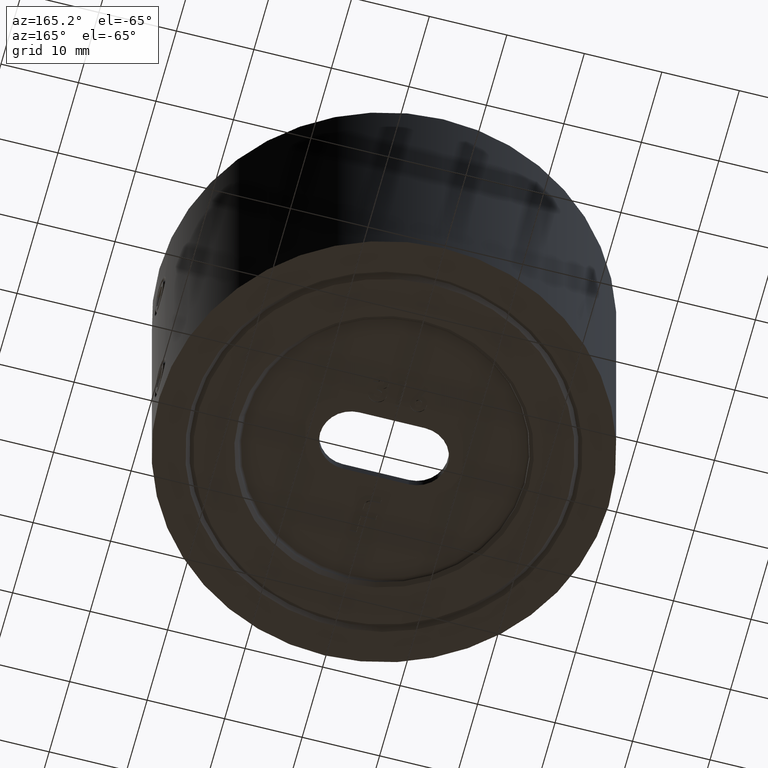
[diagram: clean part render]
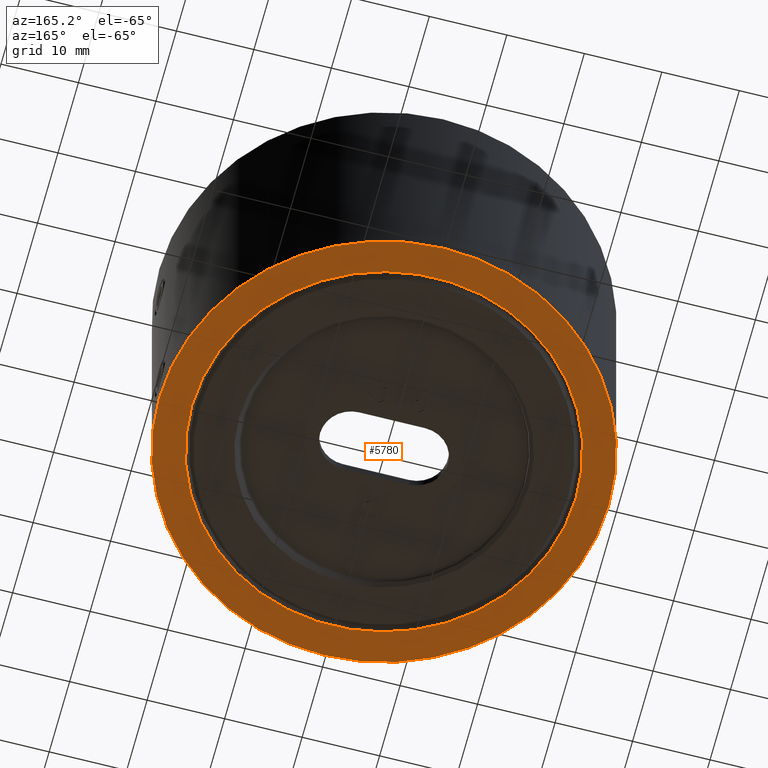
[diagram: same view with one face highlighted and labeled with its STEP entity id]
A machine part, auxiliary view. The second image highlights one B-rep face of the part: STEP entity #5780.
In plain terms, the highlighted planar face has unit normal (0, 0, 1).
Its self-contained STEP definition (entity closure, byte-faithful):
#528 = CARTESIAN_POINT ( 'NONE',  ( 24.79999999999997900, 3.037124061885433200E-015, -20.00000000000000000 ) ) ;
#592 = CARTESIAN_POINT ( 'NONE',  ( 0.0000000000000000000, 0.0000000000000000000, -20.00000000000000000 ) ) ;
#1272 = DIRECTION ( 'NONE',  ( 0.0000000000000000000, 0.0000000000000000000, 1.000000000000000000 ) ) ;
#1624 = CARTESIAN_POINT ( 'NONE',  ( -24.79999999999997900, 0.0000000000000000000, -20.00000000000000000 ) ) ;
#4226 = ORIENTED_EDGE ( 'NONE', *, *, #25349, .F. ) ;
#4228 = DIRECTION ( 'NONE',  ( 0.0000000000000000000, 0.0000000000000000000, 1.000000000000000000 ) ) ;
#5354 = EDGE_CURVE ( 'NONE', #8104, #5941, #9130, .T. ) ;
#5780 = ADVANCED_FACE ( 'NONE', ( #18858, #28303 ), #14486, .F. ) ;
#5941 = VERTEX_POINT ( 'NONE', #10800 ) ;
#5944 = DIRECTION ( 'NONE',  ( 1.000000000000000000, 0.0000000000000000000, 0.0000000000000000000 ) ) ;
#6130 = CIRCLE ( 'NONE', #7948, 29.00000000000000000 ) ;
#6208 = ORIENTED_EDGE ( 'NONE', *, *, #20875, .T. ) ;
#7948 = AXIS2_PLACEMENT_3D ( 'NONE', #27823, #12364, #5944 ) ;
#8104 = VERTEX_POINT ( 'NONE', #10433 ) ;
#9130 = CIRCLE ( 'NONE', #13333, 29.00000000000000000 ) ;
#9855 = DIRECTION ( 'NONE',  ( 1.000000000000000000, 0.0000000000000000000, 0.0000000000000000000 ) ) ;
#9988 = DIRECTION ( 'NONE',  ( 0.0000000000000000000, 0.0000000000000000000, 1.000000000000000000 ) ) ;
#10359 = EDGE_LOOP ( 'NONE', ( #4226, #26265 ) ) ;
#10433 = CARTESIAN_POINT ( 'NONE',  ( 29.00000000000000000, 3.551475717527324000E-015, -20.00000000000000000 ) ) ;
#10442 = VERTEX_POINT ( 'NONE', #1624 ) ;
#10800 = CARTESIAN_POINT ( 'NONE',  ( -29.00000000000000000, 0.0000000000000000000, -20.00000000000000000 ) ) ;
#12364 = DIRECTION ( 'NONE',  ( 0.0000000000000000000, 0.0000000000000000000, 1.000000000000000000 ) ) ;
#13333 = AXIS2_PLACEMENT_3D ( 'NONE', #26481, #4228, #15109 ) ;
#14486 = PLANE ( 'NONE',  #24324 ) ;
#14582 = ORIENTED_EDGE ( 'NONE', *, *, #19471, .T. ) ;
#15109 = DIRECTION ( 'NONE',  ( 1.000000000000000000, 0.0000000000000000000, 0.0000000000000000000 ) ) ;
#16587 = VERTEX_POINT ( 'NONE', #528 ) ;
#18858 = FACE_BOUND ( 'NONE', #22465, .T. ) ;
#19274 = CARTESIAN_POINT ( 'NONE',  ( 0.0000000000000000000, 0.0000000000000000000, -20.00000000000000000 ) ) ;
#19471 = EDGE_CURVE ( 'NONE', #10442, #16587, #24912, .T. ) ;
#20875 = EDGE_CURVE ( 'NONE', #16587, #10442, #23644, .T. ) ;
#20950 = DIRECTION ( 'NONE',  ( 0.0000000000000000000, 0.0000000000000000000, 1.000000000000000000 ) ) ;
#22465 = EDGE_LOOP ( 'NONE', ( #14582, #6208 ) ) ;
#23305 = CARTESIAN_POINT ( 'NONE',  ( 0.0000000000000000000, 0.0000000000000000000, -20.00000000000000000 ) ) ;
#23644 = CIRCLE ( 'NONE', #27441, 24.79999999999997900 ) ;
#24324 = AXIS2_PLACEMENT_3D ( 'NONE', #19274, #1272, #26002 ) ;
#24912 = CIRCLE ( 'NONE', #25197, 24.79999999999997900 ) ;
#25197 = AXIS2_PLACEMENT_3D ( 'NONE', #592, #20950, #9855 ) ;
#25349 = EDGE_CURVE ( 'NONE', #5941, #8104, #6130, .T. ) ;
#25558 = DIRECTION ( 'NONE',  ( 1.000000000000000000, 0.0000000000000000000, 0.0000000000000000000 ) ) ;
#26002 = DIRECTION ( 'NONE',  ( 1.000000000000000000, 0.0000000000000000000, -0.0000000000000000000 ) ) ;
#26265 = ORIENTED_EDGE ( 'NONE', *, *, #5354, .F. ) ;
#26481 = CARTESIAN_POINT ( 'NONE',  ( 0.0000000000000000000, 0.0000000000000000000, -20.00000000000000000 ) ) ;
#27441 = AXIS2_PLACEMENT_3D ( 'NONE', #23305, #9988, #25558 ) ;
#27823 = CARTESIAN_POINT ( 'NONE',  ( 0.0000000000000000000, 0.0000000000000000000, -20.00000000000000000 ) ) ;
#28303 = FACE_OUTER_BOUND ( 'NONE', #10359, .T. ) ;